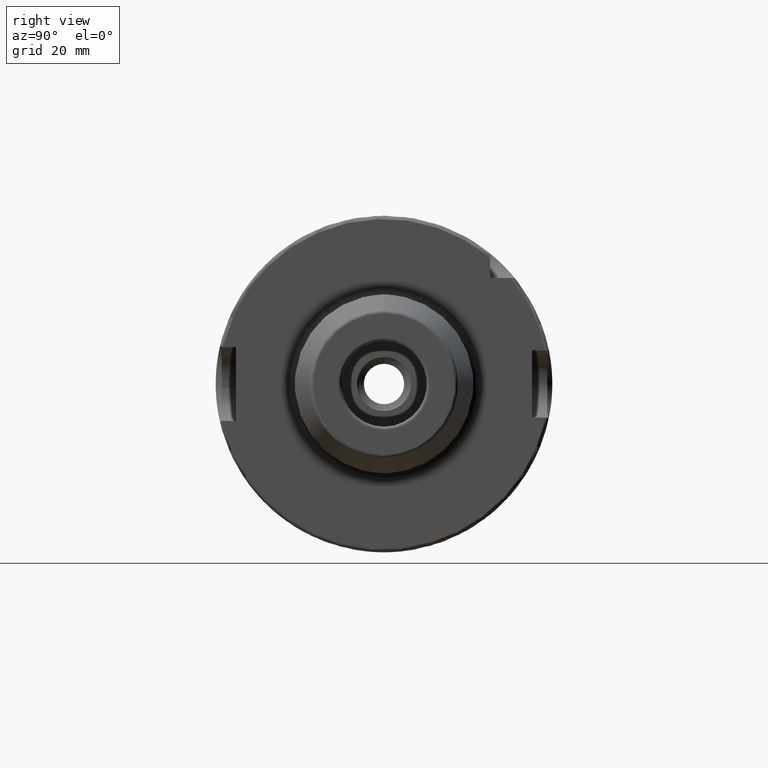
[diagram: clean part render]
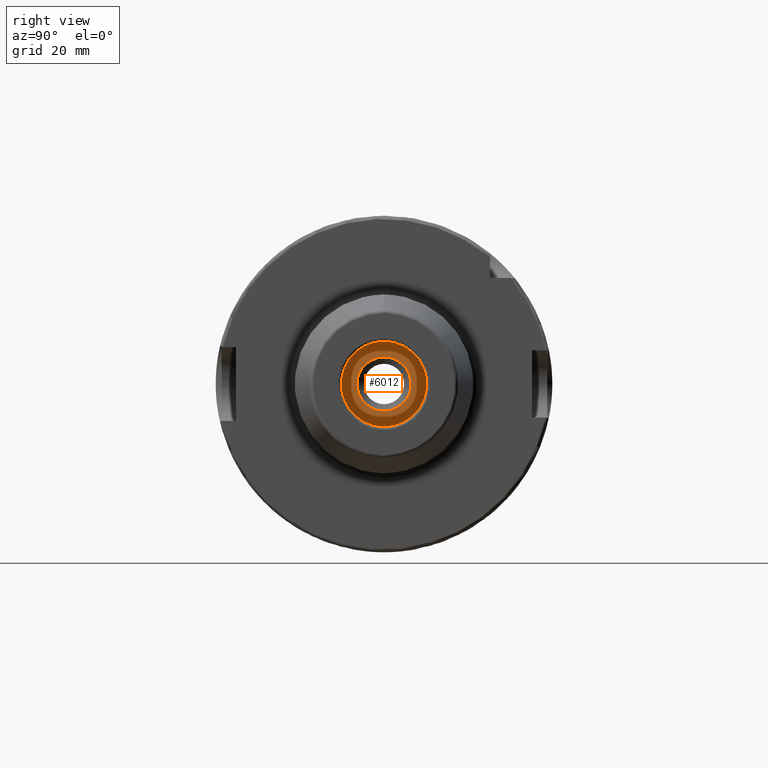
[diagram: same view with one face highlighted and labeled with its STEP entity id]
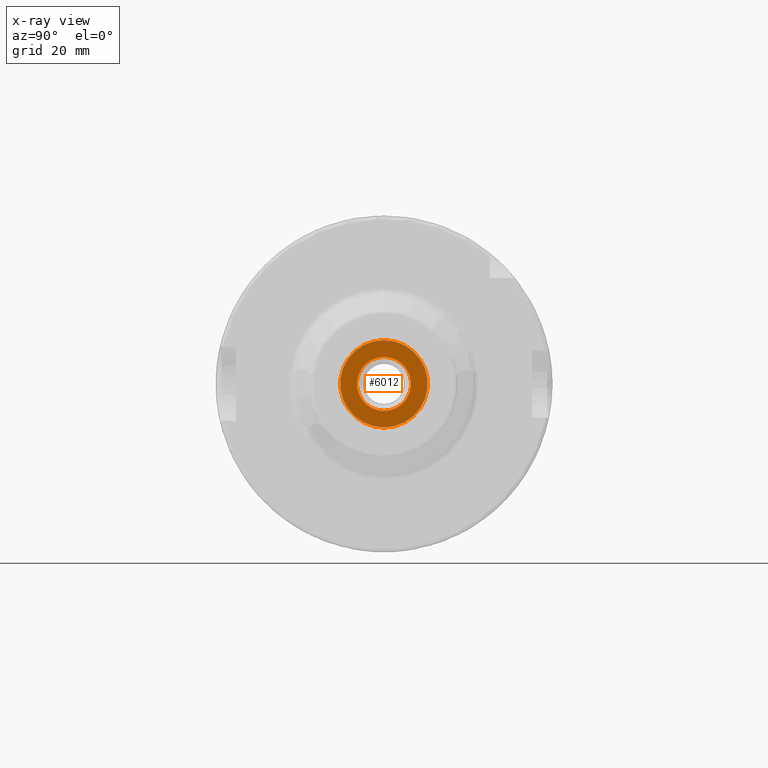
[diagram: x-ray of the same camera — body ghosted, the highlighted face saturated]
A machine part, right view. The second image highlights one B-rep face of the part: STEP entity #6012.
The next image is the same camera in x-ray: the body ghosted, the highlighted face saturated — about 7% of this face is hidden behind the body in this view.
In plain terms, the highlighted planar face has unit normal (1, 0, 0).
Its self-contained STEP definition (entity closure, byte-faithful):
#2510=CARTESIAN_POINT('',(5.5E1,0.E0,0.E0));
#2511=DIRECTION('',(-1.E0,0.E0,0.E0));
#2512=DIRECTION('',(0.E0,0.E0,-1.E0));
#2513=AXIS2_PLACEMENT_3D('',#2510,#2511,#2512);
#2515=CARTESIAN_POINT('',(5.5E1,0.E0,0.E0));
#2516=DIRECTION('',(1.E0,0.E0,0.E0));
#2517=DIRECTION('',(0.E0,0.E0,-1.E0));
#2518=AXIS2_PLACEMENT_3D('',#2515,#2516,#2517);
#2520=CARTESIAN_POINT('',(5.5E1,0.E0,0.E0));
#2521=DIRECTION('',(-1.E0,0.E0,0.E0));
#2522=DIRECTION('',(0.E0,0.E0,-1.E0));
#2523=AXIS2_PLACEMENT_3D('',#2520,#2521,#2522);
#2525=CARTESIAN_POINT('',(5.5E1,0.E0,0.E0));
#2526=DIRECTION('',(1.E0,0.E0,0.E0));
#2527=DIRECTION('',(0.E0,0.E0,-1.E0));
#2528=AXIS2_PLACEMENT_3D('',#2525,#2526,#2527);
#3159=CARTESIAN_POINT('',(5.5E1,0.E0,-8.05E0));
#3160=VERTEX_POINT('',#3159);
#3161=CARTESIAN_POINT('',(5.5E1,0.E0,-1.3E1));
#3163=VERTEX_POINT('',#3161);
#3187=CARTESIAN_POINT('',(5.5E1,0.E0,8.05E0));
#3188=VERTEX_POINT('',#3187);
#3189=CARTESIAN_POINT('',(5.5E1,0.E0,1.3E1));
#3191=VERTEX_POINT('',#3189);
#5997=CARTESIAN_POINT('',(5.5E1,0.E0,0.E0));
#5998=DIRECTION('',(1.E0,0.E0,0.E0));
#5999=DIRECTION('',(0.E0,0.E0,1.E0));
#6000=AXIS2_PLACEMENT_3D('',#5997,#5998,#5999);
#6001=PLANE('',#6000);
#6002=ORIENTED_EDGE('',*,*,#5990,.F.);
#6003=ORIENTED_EDGE('',*,*,#5979,.T.);
#6004=EDGE_LOOP('',(#6002,#6003));
#6005=FACE_OUTER_BOUND('',#6004,.F.);
#6007=ORIENTED_EDGE('',*,*,#6006,.F.);
#6009=ORIENTED_EDGE('',*,*,#6008,.T.);
#6010=EDGE_LOOP('',(#6007,#6009));
#6011=FACE_BOUND('',#6010,.F.);
#6012=ADVANCED_FACE('',(#6005,#6011),#6001,.T.);
#2514=CIRCLE('',#2513,1.3E1);
#2519=CIRCLE('',#2518,1.3E1);
#2524=CIRCLE('',#2523,8.05E0);
#2529=CIRCLE('',#2528,8.05E0);
#5979=EDGE_CURVE('',#3163,#3191,#2514,.T.);
#5990=EDGE_CURVE('',#3163,#3191,#2519,.T.);
#6006=EDGE_CURVE('',#3160,#3188,#2524,.T.);
#6008=EDGE_CURVE('',#3160,#3188,#2529,.T.);